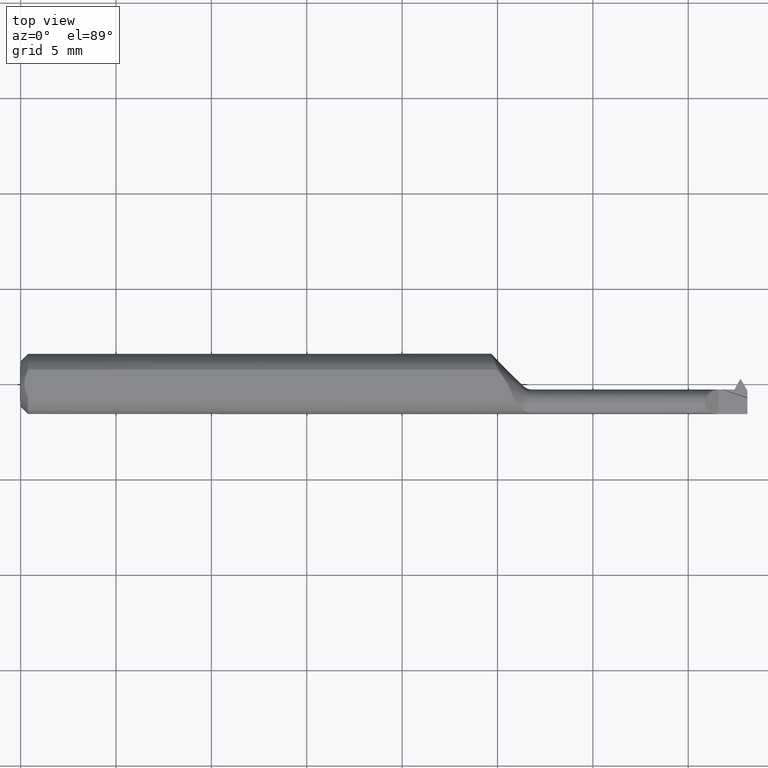
[diagram: clean part render]
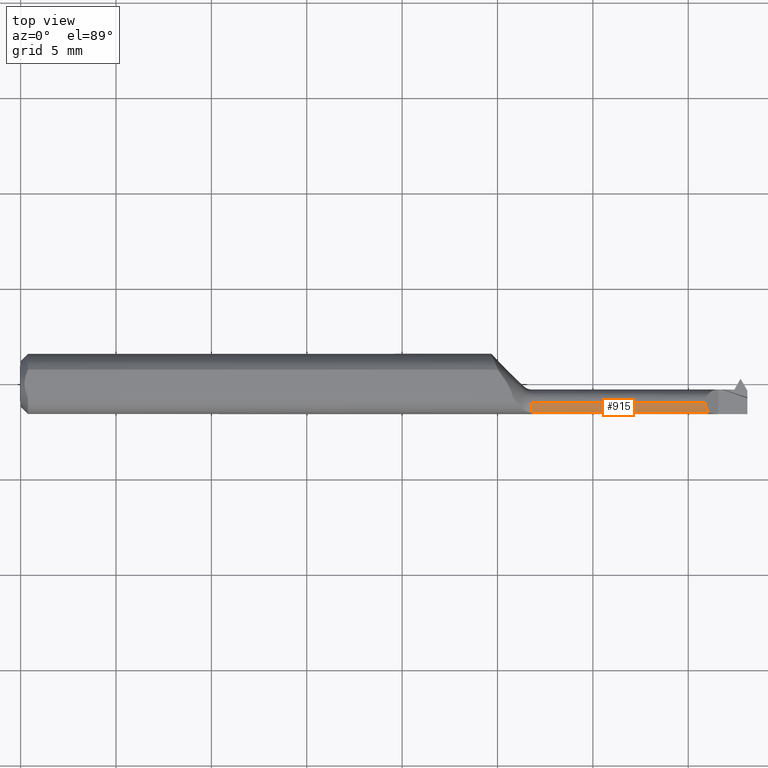
[diagram: same view with one face highlighted and labeled with its STEP entity id]
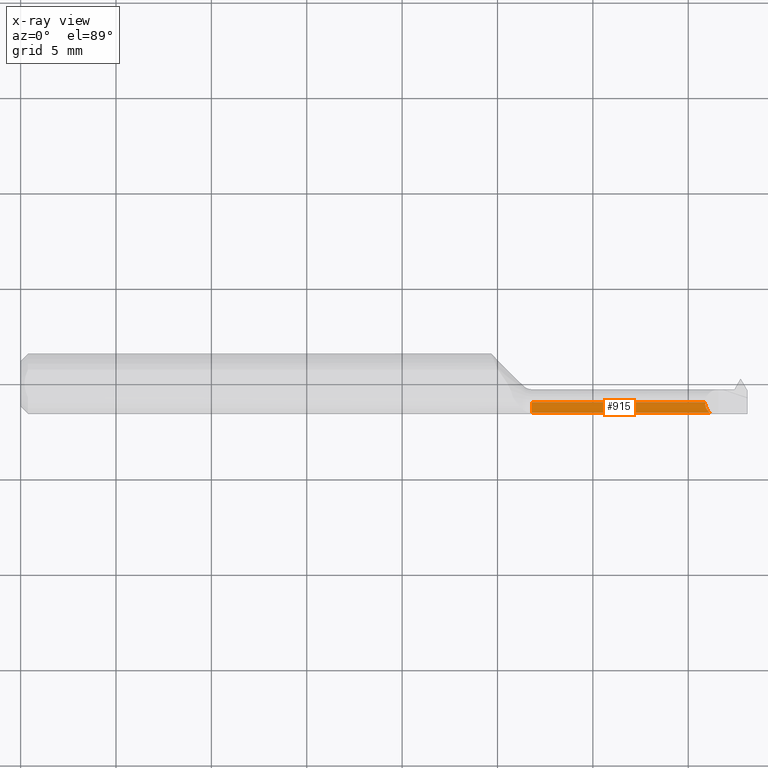
[diagram: x-ray of the same camera — body ghosted, the highlighted face saturated]
A machine part, top view. The second image highlights one B-rep face of the part: STEP entity #915.
The next image is the same camera in x-ray: the body ghosted, the highlighted face saturated — about 0% of this face is hidden behind the body in this view.
In plain terms, the highlighted cylindrical surface (edge-blend (fillet) strip) has radius 0.6985 mm, axis along (-1, -0, -0).
Its self-contained STEP definition (entity closure, byte-faithful):
#61 = CARTESIAN_POINT ( 'NONE',  ( 1.044999999999999929, -0.03885000000000000259, 0.000000000000000000 ) ) ;
#78 = CARTESIAN_POINT ( 'NONE',  ( 1.412649999999999739, -0.03885000000000000259, 0.02749999999999999667 ) ) ;
#80 = EDGE_LOOP ( 'NONE', ( #190, #1049, #544, #731 ) ) ;
#92 = AXIS2_PLACEMENT_3D ( 'NONE', #128, #964, #626 ) ;
#110 = VERTEX_POINT ( 'NONE', #686 ) ;
#118 = CYLINDRICAL_SURFACE ( 'NONE', #643, 0.02749999999999999667 ) ;
#128 = CARTESIAN_POINT ( 'NONE',  ( 1.055355339059327324, -0.03885000000000000259, 0.000000000000000000 ) ) ;
#163 = VECTOR ( 'NONE', #808, 39.37007874015748143 ) ;
#190 = ORIENTED_EDGE ( 'NONE', *, *, #583, .T. ) ;
#195 = DIRECTION ( 'NONE',  ( 1.000000000000000000, 0.000000000000000000, 0.000000000000000000 ) ) ;
#422 = EDGE_CURVE ( 'NONE', #1039, #770, #551, .T. ) ;
#466 = CARTESIAN_POINT ( 'NONE',  ( 1.044999999999999929, -0.03885000000000000259, 0.02749999999999999667 ) ) ;
#544 = ORIENTED_EDGE ( 'NONE', *, *, #422, .T. ) ;
#551 = CIRCLE ( 'NONE', #92, 0.02749999999999999667 ) ;
#583 = EDGE_CURVE ( 'NONE', #621, #110, #792, .T. ) ;
#600 = LINE ( 'NONE', #825, #833 ) ;
#621 = VERTEX_POINT ( 'NONE', #806 ) ;
#626 = DIRECTION ( 'NONE',  ( 0.000000000000000000, 0.000000000000000000, 1.000000000000000000 ) ) ;
#629 = CARTESIAN_POINT ( 'NONE',  ( 1.055355339059327324, -0.05972451737451738019, 0.01790264015113335327 ) ) ;
#643 = AXIS2_PLACEMENT_3D ( 'NONE', #61, #736, #978 ) ;
#686 = CARTESIAN_POINT ( 'NONE',  ( 1.412649999999999739, -0.03885000000000000259, 0.02749999999999999667 ) ) ;
#703 = EDGE_CURVE ( 'NONE', #770, #621, #600, .T. ) ;
#731 = ORIENTED_EDGE ( 'NONE', *, *, #703, .T. ) ;
#732 = LINE ( 'NONE', #466, #163 ) ;
#736 = DIRECTION ( 'NONE',  ( -1.000000000000000000, -0.000000000000000000, -0.000000000000000000 ) ) ;
#770 = VERTEX_POINT ( 'NONE', #629 ) ;
#792 =( BOUNDED_CURVE ( )  B_SPLINE_CURVE ( 3, ( #820, #809, #814, #78 ),
 .UNSPECIFIED., .F., .T. ) 
 B_SPLINE_CURVE_WITH_KNOTS ( ( 4, 4 ),
 ( 5.421296776229727499, 6.283185307179586232 ),
 .UNSPECIFIED. ) 
 CURVE ( )  GEOMETRIC_REPRESENTATION_ITEM ( )  RATIONAL_B_SPLINE_CURVE ( ( 1.000000000000000000, 0.9390478051955295502, 0.9390478051955295502, 1.000000000000000000 ) ) 
 REPRESENTATION_ITEM ( '' )  );
#806 = CARTESIAN_POINT ( 'NONE',  ( 1.422247359848866521, -0.05972451737451737325, 0.01790264015113332552 ) ) ;
#808 = DIRECTION ( 'NONE',  ( -1.000000000000000000, -0.000000000000000000, -0.000000000000000000 ) ) ;
#809 = CARTESIAN_POINT ( 'NONE',  ( 1.416056770062101178, -0.05441527360675338376, 0.02409322993789851652 ) ) ;
#814 = CARTESIAN_POINT ( 'NONE',  ( 1.412649999999999739, -0.04700545653495517145, 0.02749999999999999667 ) ) ;
#820 = CARTESIAN_POINT ( 'NONE',  ( 1.422247359848866521, -0.05972451737451737325, 0.01790264015113332552 ) ) ;
#825 = CARTESIAN_POINT ( 'NONE',  ( 1.257499999999999840, -0.05972451737451738019, 0.01790264015113335327 ) ) ;
#833 = VECTOR ( 'NONE', #195, 39.37007874015748143 ) ;
#866 = FACE_OUTER_BOUND ( 'NONE', #80, .T. ) ;
#880 = CARTESIAN_POINT ( 'NONE',  ( 1.055355339059327324, -0.03885000000000000259, 0.02749999999999999667 ) ) ;
#915 = ADVANCED_FACE ( 'NONE', ( #866 ), #118, .T. ) ;
#964 = DIRECTION ( 'NONE',  ( 1.000000000000000000, 0.000000000000000000, 0.000000000000000000 ) ) ;
#978 = DIRECTION ( 'NONE',  ( 0.000000000000000000, 0.000000000000000000, 1.000000000000000000 ) ) ;
#1013 = EDGE_CURVE ( 'NONE', #110, #1039, #732, .T. ) ;
#1039 = VERTEX_POINT ( 'NONE', #880 ) ;
#1049 = ORIENTED_EDGE ( 'NONE', *, *, #1013, .T. ) ;